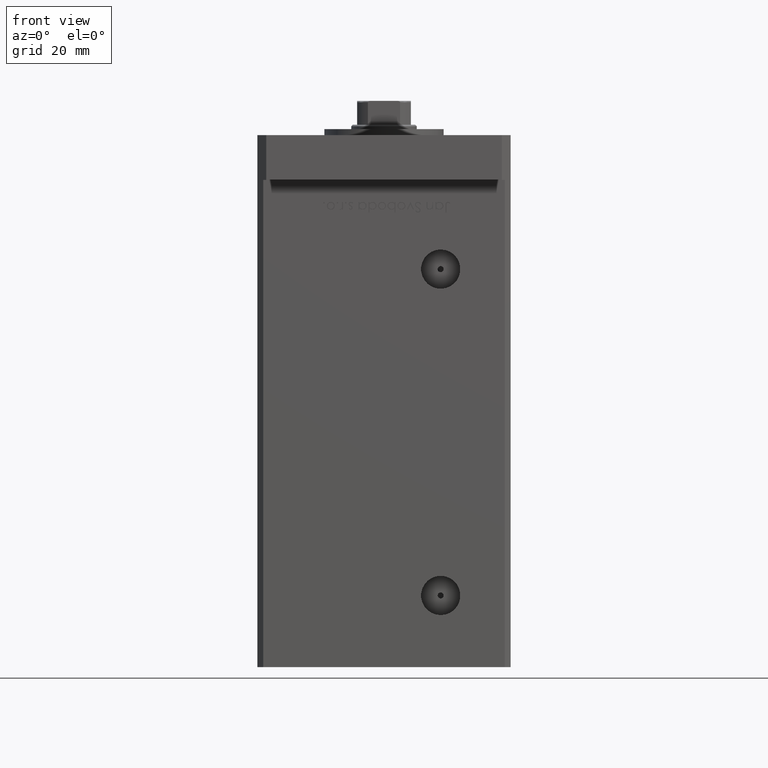
[diagram: clean part render]
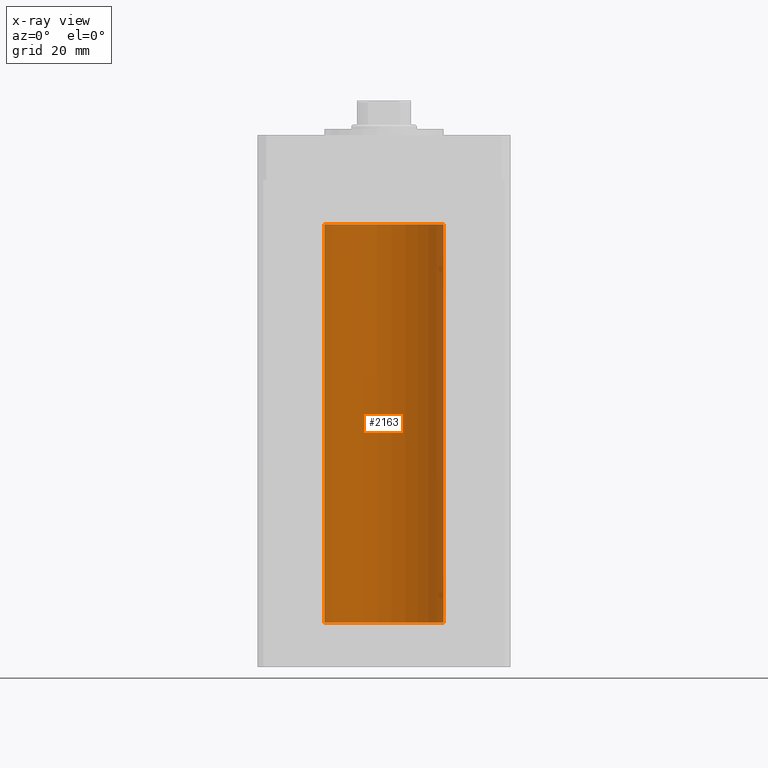
[diagram: x-ray — body ghosted, one internal face saturated and labeled with its STEP entity id]
A machine part, front view, then the same camera in x-ray: the body is ghosted and one INTERNAL B-rep face — a face not visible from any outside direction — is saturated and labeled: STEP entity #2163.
In plain terms, the highlighted cylindrical surface (partial cylindrical patch) has radius 20 mm, axis along (-0, -0, -1).
Its self-contained STEP definition (entity closure, byte-faithful):
#2163 = ADVANCED_FACE ( 'NONE', ( #25414 ), #41973, .F. ) ;
#3922 = CARTESIAN_POINT ( 'NONE',  ( -20.00000000000000000, 0.000000000000000000, 133.5000000000000000 ) ) ;
#4802 = CARTESIAN_POINT ( 'NONE',  ( 0.000000000000000000, 0.000000000000000000, 133.5000000000000000 ) ) ;
#4966 = CARTESIAN_POINT ( 'NONE',  ( -20.00000000000000000, 0.000000000000000000, 133.5000000000000000 ) ) ;
#8071 = CARTESIAN_POINT ( 'NONE',  ( 20.00000000000000000, 2.449293598294706513E-15, 0.000000000000000000 ) ) ;
#8360 = CARTESIAN_POINT ( 'NONE',  ( -20.00000000000000000, 0.000000000000000000, 0.000000000000000000 ) ) ;
#10130 = EDGE_LOOP ( 'NONE', ( #22493, #10426, #16936, #33398 ) ) ;
#10426 = ORIENTED_EDGE ( 'NONE', *, *, #48054, .T. ) ;
#11356 = VECTOR ( 'NONE', #14913, 1000.000000000000000 ) ;
#12864 = DIRECTION ( 'NONE',  ( 1.000000000000000000, 0.000000000000000000, 0.000000000000000000 ) ) ;
#13042 = CARTESIAN_POINT ( 'NONE',  ( 20.00000000000000000, 2.449293598294706513E-15, 133.5000000000000000 ) ) ;
#13746 = DIRECTION ( 'NONE',  ( -1.000000000000000000, 0.000000000000000000, 0.000000000000000000 ) ) ;
#14913 = DIRECTION ( 'NONE',  ( -0.000000000000000000, -0.000000000000000000, -1.000000000000000000 ) ) ;
#15681 = AXIS2_PLACEMENT_3D ( 'NONE', #22718, #51758, #19172 ) ;
#16936 = ORIENTED_EDGE ( 'NONE', *, *, #26092, .T. ) ;
#19172 = DIRECTION ( 'NONE',  ( 1.000000000000000000, 0.000000000000000000, 0.000000000000000000 ) ) ;
#19785 = CARTESIAN_POINT ( 'NONE',  ( 20.00000000000000000, 2.449293598294706513E-15, 133.5000000000000000 ) ) ;
#21330 = DIRECTION ( 'NONE',  ( -0.000000000000000000, -0.000000000000000000, -1.000000000000000000 ) ) ;
#21522 = DIRECTION ( 'NONE',  ( -0.000000000000000000, 0.000000000000000000, 1.000000000000000000 ) ) ;
#22166 = CIRCLE ( 'NONE', #29115, 20.00000000000000000 ) ;
#22493 = ORIENTED_EDGE ( 'NONE', *, *, #30109, .F. ) ;
#22718 = CARTESIAN_POINT ( 'NONE',  ( 0.000000000000000000, 0.000000000000000000, 0.000000000000000000 ) ) ;
#25414 = FACE_OUTER_BOUND ( 'NONE', #10130, .T. ) ;
#25565 = VERTEX_POINT ( 'NONE', #13042 ) ;
#26092 = EDGE_CURVE ( 'NONE', #49494, #43404, #46224, .T. ) ;
#29115 = AXIS2_PLACEMENT_3D ( 'NONE', #38088, #21522, #12864 ) ;
#29134 = DIRECTION ( 'NONE',  ( -0.000000000000000000, -0.000000000000000000, -1.000000000000000000 ) ) ;
#29471 = EDGE_CURVE ( 'NONE', #48464, #43404, #33051, .T. ) ;
#30109 = EDGE_CURVE ( 'NONE', #25565, #48464, #44224, .T. ) ;
#33051 = CIRCLE ( 'NONE', #15681, 20.00000000000000000 ) ;
#33398 = ORIENTED_EDGE ( 'NONE', *, *, #29471, .F. ) ;
#38088 = CARTESIAN_POINT ( 'NONE',  ( 0.000000000000000000, 0.000000000000000000, 133.5000000000000000 ) ) ;
#41973 = CYLINDRICAL_SURFACE ( 'NONE', #44102, 20.00000000000000000 ) ;
#43404 = VERTEX_POINT ( 'NONE', #8360 ) ;
#44102 = AXIS2_PLACEMENT_3D ( 'NONE', #4802, #21330, #13746 ) ;
#44224 = LINE ( 'NONE', #19785, #11356 ) ;
#45524 = VECTOR ( 'NONE', #29134, 1000.000000000000000 ) ;
#46224 = LINE ( 'NONE', #3922, #45524 ) ;
#48054 = EDGE_CURVE ( 'NONE', #25565, #49494, #22166, .T. ) ;
#48464 = VERTEX_POINT ( 'NONE', #8071 ) ;
#49494 = VERTEX_POINT ( 'NONE', #4966 ) ;
#51758 = DIRECTION ( 'NONE',  ( -0.000000000000000000, 0.000000000000000000, 1.000000000000000000 ) ) ;